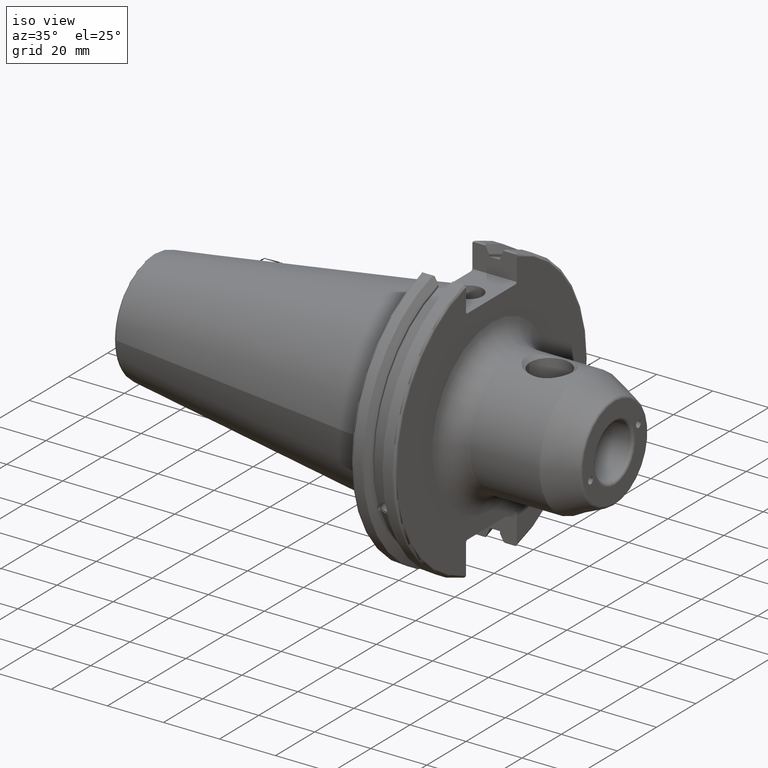
[diagram: clean part render]
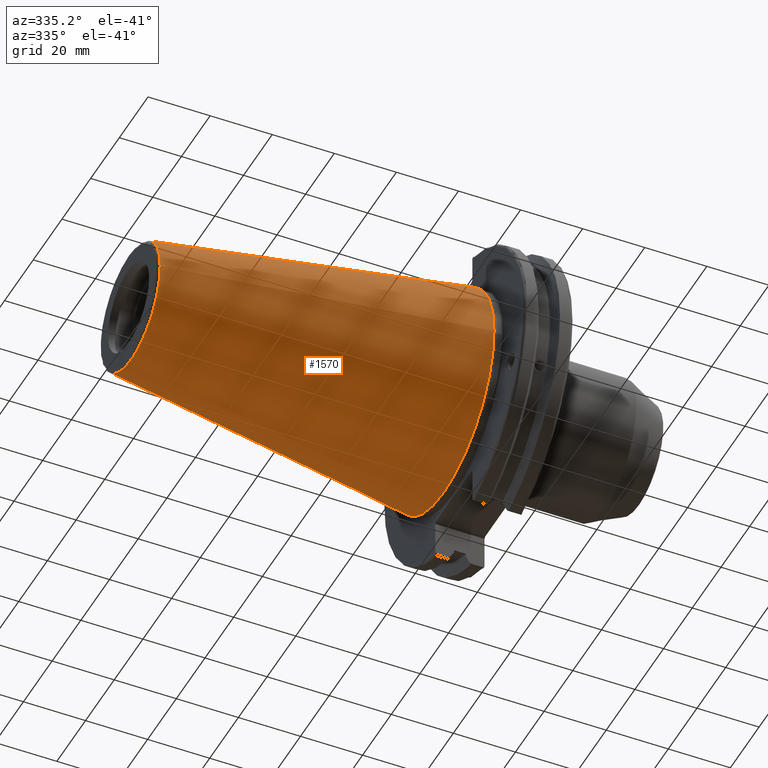
[diagram: tour spotlight — one face highlighted and labeled with its STEP entity id]
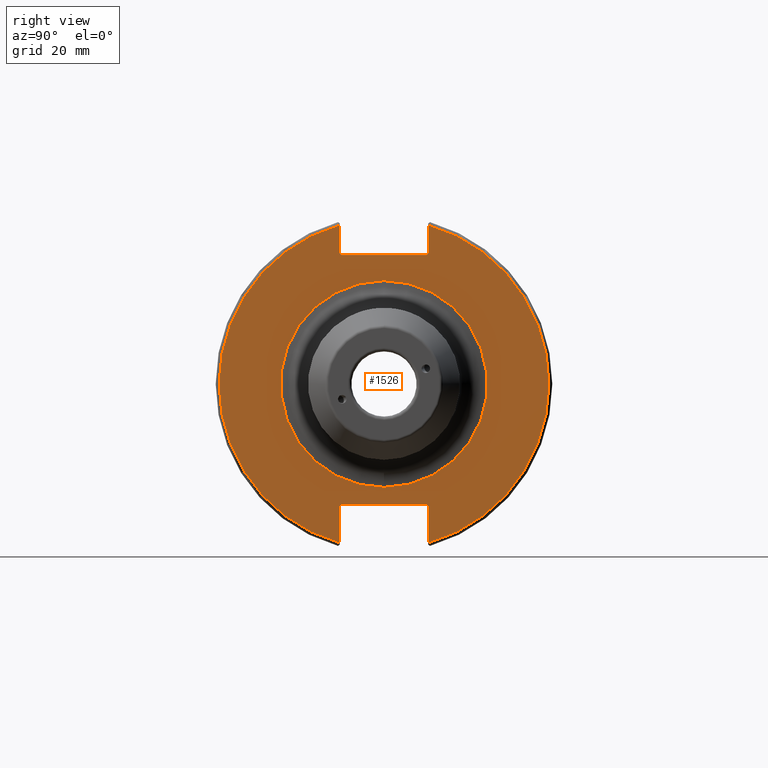
[diagram: tour spotlight — one face highlighted and labeled with its STEP entity id]
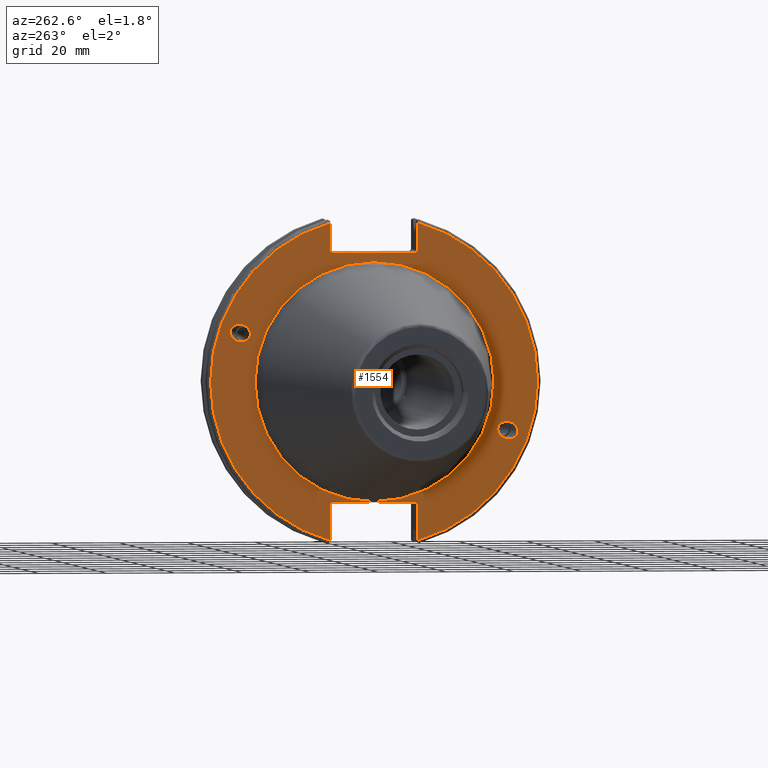
[diagram: tour spotlight — one face highlighted and labeled with its STEP entity id]
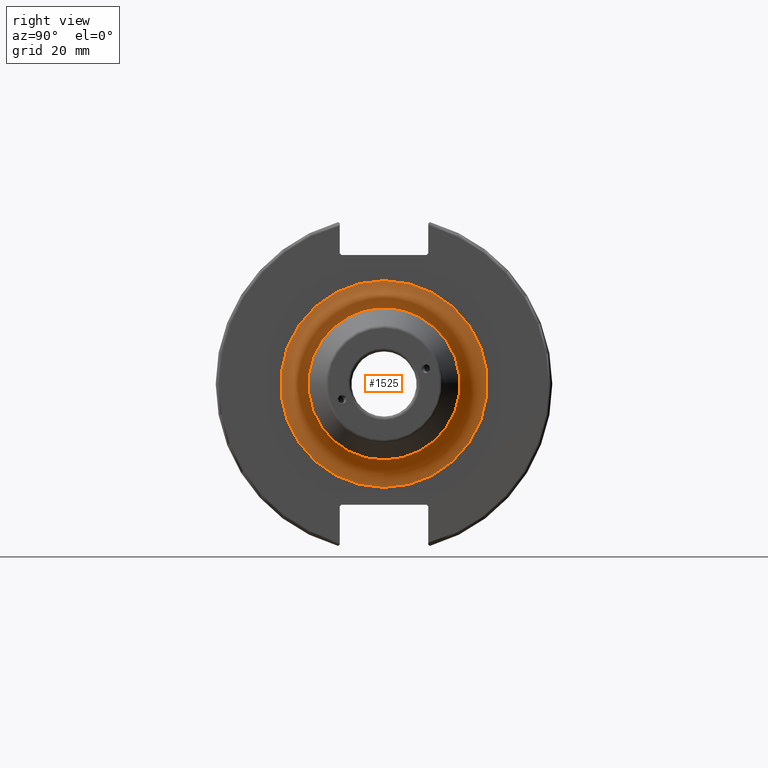
[diagram: tour spotlight — one face highlighted and labeled with its STEP entity id]
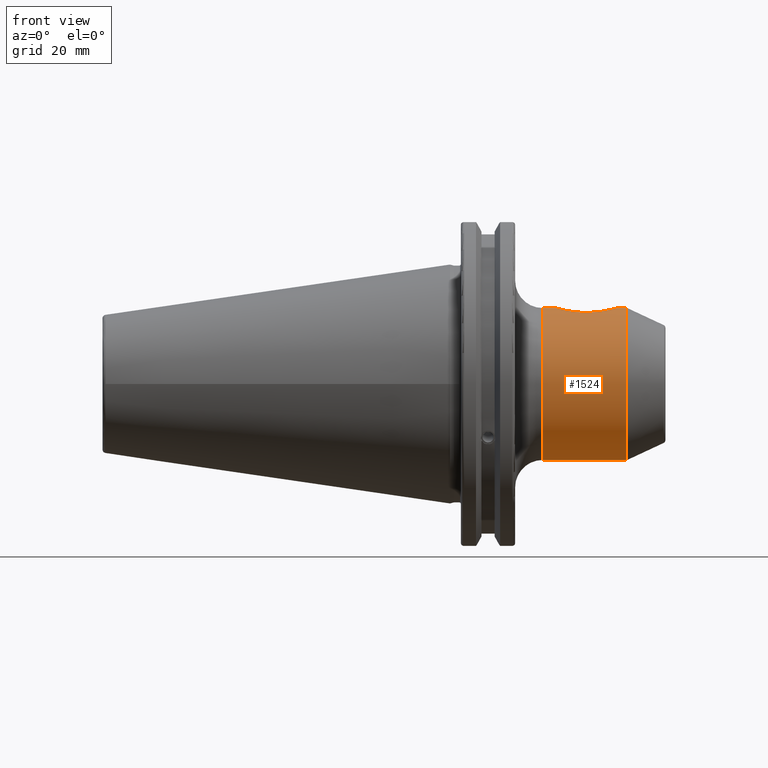
[diagram: tour spotlight — one face highlighted and labeled with its STEP entity id]
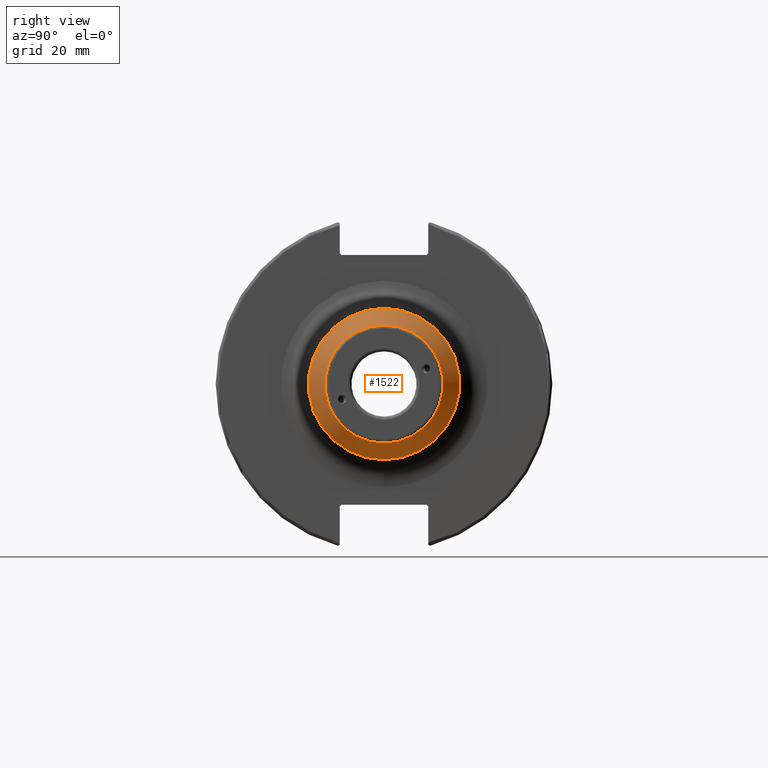
[diagram: tour spotlight — one face highlighted and labeled with its STEP entity id]
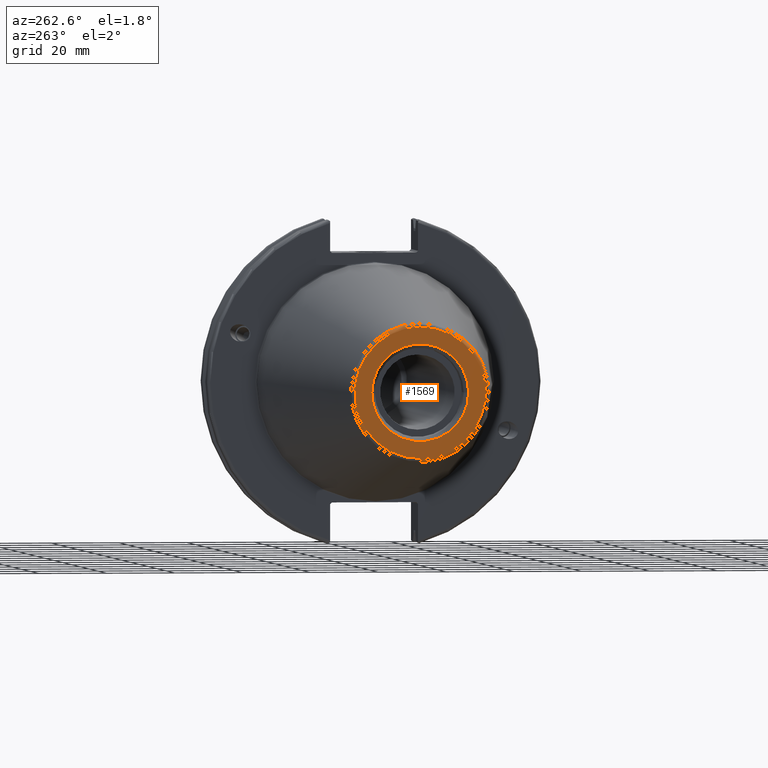
[diagram: tour spotlight — one face highlighted and labeled with its STEP entity id]
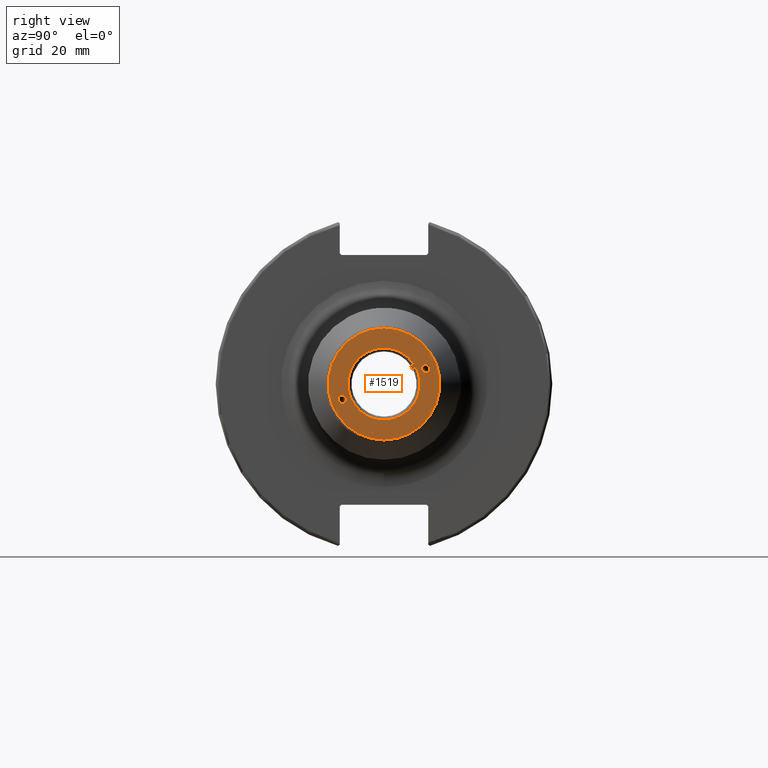
[diagram: tour spotlight — one face highlighted and labeled with its STEP entity id]
A machine part: a face-by-face anatomy tour. The part has 86 B-rep faces; the first image is the clean iso view, then the 8 largest visible faces are spotlighted one at a time (largest first), each with its STEP entity span.

Face 1 — auxiliary view, entity #1570. In plain terms, the highlighted conical surface has half-angle 8.297 deg.
Definition (entity closure, byte-faithful):
#48=CONICAL_SURFACE('',#1746,27.5166666666666,0.14481249823894);
#172=CIRCLE('',#1740,20.233121911427);
#173=CIRCLE('',#1741,20.233121911427);
#177=CIRCLE('',#1747,34.925);
#246=FACE_OUTER_BOUND('',#354,.T.);
#354=EDGE_LOOP('',(#1355,#1356,#1357,#1358,#1359));
#508=LINE('',#3269,#601);
#601=VECTOR('',#2117,27.5166666666666);
#769=VERTEX_POINT('',#3256);
#770=VERTEX_POINT('',#3257);
#773=VERTEX_POINT('',#3267);
#980=EDGE_CURVE('',#769,#770,#172,.T.);
#981=EDGE_CURVE('',#770,#769,#173,.T.);
#985=EDGE_CURVE('',#773,#773,#177,.T.);
#986=EDGE_CURVE('',#773,#770,#508,.T.);
#1355=ORIENTED_EDGE('',*,*,#985,.F.);
#1356=ORIENTED_EDGE('',*,*,#986,.T.);
#1357=ORIENTED_EDGE('',*,*,#980,.F.);
#1358=ORIENTED_EDGE('',*,*,#981,.F.);
#1359=ORIENTED_EDGE('',*,*,#986,.F.);
#1570=ADVANCED_FACE('',(#246),#48,.T.);
#1740=AXIS2_PLACEMENT_3D('',#3258,#2101,#2102);
#1741=AXIS2_PLACEMENT_3D('',#3259,#2103,#2104);
#1746=AXIS2_PLACEMENT_3D('',#3266,#2113,#2114);
#1747=AXIS2_PLACEMENT_3D('',#3268,#2115,#2116);
#2101=DIRECTION('center_axis',(-1.,0.,0.));
#2102=DIRECTION('ref_axis',(0.,-1.,3.06161699786838E-17));
#2103=DIRECTION('center_axis',(-1.,0.,0.));
#2104=DIRECTION('ref_axis',(0.,-1.,3.06161699786838E-17));
#2113=DIRECTION('center_axis',(1.,0.,0.));
#2114=DIRECTION('ref_axis',(0.,1.,0.));
#2115=DIRECTION('center_axis',(1.,0.,0.));
#2116=DIRECTION('ref_axis',(0.,0.,-1.));
#2117=DIRECTION('',(-0.989532981063281,0.144306893071729,1.76724974695192E-17));
#3256=CARTESIAN_POINT('',(-100.744306893072,-2.47784279855872E-15,20.233121911427));
#3257=CARTESIAN_POINT('',(-100.744306893072,-20.233121911427,-2.47784279855872E-15));
#3258=CARTESIAN_POINT('Origin',(-100.744306893072,0.,-3.09730349819841E-15));
#3259=CARTESIAN_POINT('Origin',(-100.744306893072,0.,-3.09730349819841E-15));
#3266=CARTESIAN_POINT('Origin',(-50.8,0.,0.));
#3267=CARTESIAN_POINT('',(-8.88178419700125E-15,-34.925,-4.27707894602213E-15));
#3268=CARTESIAN_POINT('Origin',(0.,0.,0.));
#3269=CARTESIAN_POINT('',(-50.8,-27.5166666666666,-3.3698197756538E-15));

Face 2 — right view, entity #1526. In plain terms, the highlighted planar face has unit normal (1, 0, 0).
Definition (entity closure, byte-faithful):
#59=FACE_BOUND('',#294,.T.);
#80=PLANE('',#1657);
#133=CIRCLE('',#1656,30.225);
#134=CIRCLE('',#1658,48.2125);
#135=CIRCLE('',#1659,48.2125);
#202=FACE_OUTER_BOUND('',#293,.T.);
#293=EDGE_LOOP('',(#1087,#1088,#1089,#1090,#1091,#1092,#1093,#1094,#1095,
#1096,#1097,#1098));
#294=EDGE_LOOP('',(#1099));
#440=LINE('',#2470,#533);
#441=LINE('',#2472,#534);
#442=LINE('',#2474,#535);
#443=LINE('',#2476,#536);
#444=LINE('',#2478,#537);
#445=LINE('',#2482,#538);
#446=LINE('',#2484,#539);
#447=LINE('',#2486,#540);
#448=LINE('',#2488,#541);
#449=LINE('',#2489,#542);
#533=VECTOR('',#1871,10.);
#534=VECTOR('',#1872,10.);
#535=VECTOR('',#1873,10.);
#536=VECTOR('',#1874,10.);
#537=VECTOR('',#1875,10.);
#538=VECTOR('',#1878,10.);
#539=VECTOR('',#1879,10.);
#540=VECTOR('',#1880,10.);
#541=VECTOR('',#1881,10.);
#542=VECTOR('',#1882,10.);
#648=VERTEX_POINT('',#2462);
#649=VERTEX_POINT('',#2466);
#650=VERTEX_POINT('',#2467);
#651=VERTEX_POINT('',#2469);
#652=VERTEX_POINT('',#2471);
#653=VERTEX_POINT('',#2473);
#654=VERTEX_POINT('',#2475);
#655=VERTEX_POINT('',#2477);
#656=VERTEX_POINT('',#2479);
#657=VERTEX_POINT('',#2481);
#658=VERTEX_POINT('',#2483);
#659=VERTEX_POINT('',#2485);
#660=VERTEX_POINT('',#2487);
#819=EDGE_CURVE('',#648,#648,#133,.T.);
#820=EDGE_CURVE('',#649,#650,#134,.T.);
#821=EDGE_CURVE('',#649,#651,#440,.T.);
#822=EDGE_CURVE('',#652,#651,#441,.T.);
#823=EDGE_CURVE('',#652,#653,#442,.T.);
#824=EDGE_CURVE('',#654,#653,#443,.T.);
#825=EDGE_CURVE('',#654,#655,#444,.T.);
#826=EDGE_CURVE('',#656,#655,#135,.T.);
#827=EDGE_CURVE('',#656,#657,#445,.T.);
#828=EDGE_CURVE('',#658,#657,#446,.T.);
#829=EDGE_CURVE('',#658,#659,#447,.T.);
#830=EDGE_CURVE('',#660,#659,#448,.T.);
#831=EDGE_CURVE('',#660,#650,#449,.T.);
#1087=ORIENTED_EDGE('',*,*,#820,.F.);
#1088=ORIENTED_EDGE('',*,*,#821,.T.);
#1089=ORIENTED_EDGE('',*,*,#822,.F.);
#1090=ORIENTED_EDGE('',*,*,#823,.T.);
#1091=ORIENTED_EDGE('',*,*,#824,.F.);
#1092=ORIENTED_EDGE('',*,*,#825,.T.);
#1093=ORIENTED_EDGE('',*,*,#826,.F.);
#1094=ORIENTED_EDGE('',*,*,#827,.T.);
#1095=ORIENTED_EDGE('',*,*,#828,.F.);
#1096=ORIENTED_EDGE('',*,*,#829,.T.);
#1097=ORIENTED_EDGE('',*,*,#830,.F.);
#1098=ORIENTED_EDGE('',*,*,#831,.T.);
#1099=ORIENTED_EDGE('',*,*,#819,.F.);
#1526=ADVANCED_FACE('',(#202,#59),#80,.T.);
#1656=AXIS2_PLACEMENT_3D('',#2464,#1865,#1866);
#1657=AXIS2_PLACEMENT_3D('',#2465,#1867,#1868);
#1658=AXIS2_PLACEMENT_3D('',#2468,#1869,#1870);
#1659=AXIS2_PLACEMENT_3D('',#2480,#1876,#1877);
#1865=DIRECTION('center_axis',(1.,0.,0.));
#1866=DIRECTION('ref_axis',(0.,1.22464679914735E-16,-1.));
#1867=DIRECTION('center_axis',(1.,0.,0.));
#1868=DIRECTION('ref_axis',(0.,0.,-1.));
#1869=DIRECTION('center_axis',(-1.,0.,0.));
#1870=DIRECTION('ref_axis',(0.,1.,-6.12323399573677E-17));
#1871=DIRECTION('',(0.,0.,-1.));
#1872=DIRECTION('',(0.,0.707106781186549,0.707106781186546));
#1873=DIRECTION('',(0.,-1.,0.));
#1874=DIRECTION('',(0.,0.707106781186549,-0.707106781186546));
#1875=DIRECTION('',(0.,0.,1.));
#1876=DIRECTION('center_axis',(-1.,0.,0.));
#1877=DIRECTION('ref_axis',(0.,-1.,1.60812264967664E-16));
#1878=DIRECTION('',(0.,0.,1.));
#1879=DIRECTION('',(0.,-0.707106781186549,-0.707106781186546));
#1880=DIRECTION('',(0.,1.,0.));
#1881=DIRECTION('',(0.,-0.707106781186549,0.707106781186546));
#1882=DIRECTION('',(0.,0.,-1.));
#2462=CARTESIAN_POINT('',(19.05,-3.70149495042287E-15,-30.225));
#2464=CARTESIAN_POINT('Origin',(19.05,0.,0.));
#2465=CARTESIAN_POINT('Origin',(19.05,0.,0.));
#2466=CARTESIAN_POINT('',(19.05,12.95,46.4407434937254));
#2467=CARTESIAN_POINT('',(19.05,12.95,-46.4407434937254));
#2468=CARTESIAN_POINT('Origin',(19.05,0.,0.));
#2469=CARTESIAN_POINT('',(19.05,12.95,38.219));
#2470=CARTESIAN_POINT('',(19.05,12.95,18.8595));
#2471=CARTESIAN_POINT('',(19.05,12.45,37.719));
#2472=CARTESIAN_POINT('',(19.05,0.0327499999999836,25.30175));
#2473=CARTESIAN_POINT('',(19.05,-12.45,37.719));
#2474=CARTESIAN_POINT('',(19.05,0.,37.719));
#2475=CARTESIAN_POINT('',(19.05,-12.95,38.219));
#2476=CARTESIAN_POINT('',(19.05,-0.0327499999999817,25.30175));
#2477=CARTESIAN_POINT('',(19.05,-12.95,46.4407434937254));
#2478=CARTESIAN_POINT('',(19.05,-12.95,18.8595));
#2479=CARTESIAN_POINT('',(19.05,-12.95,-46.4407434937254));
#2480=CARTESIAN_POINT('Origin',(19.05,0.,0.));
#2481=CARTESIAN_POINT('',(19.05,-12.95,-35.806));
#2482=CARTESIAN_POINT('',(19.05,-12.95,-17.653));
#2483=CARTESIAN_POINT('',(19.05,-12.45,-35.306));
#2484=CARTESIAN_POINT('',(19.05,-0.635999999999989,-23.492));
#2485=CARTESIAN_POINT('',(19.05,12.45,-35.306));
#2486=CARTESIAN_POINT('',(19.05,-3.33066907387547E-15,-35.306));
#2487=CARTESIAN_POINT('',(19.05,12.95,-35.806));
#2488=CARTESIAN_POINT('',(19.05,0.635999999999982,-23.492));
#2489=CARTESIAN_POINT('',(19.05,12.95,-17.653));

Face 3 — auxiliary view, entity #1554. In plain terms, the highlighted planar face has unit normal (-1, 0, 0).
Definition (entity closure, byte-faithful):
#72=FACE_BOUND('',#335,.T.);
#73=FACE_BOUND('',#336,.T.);
#74=FACE_BOUND('',#337,.T.);
#89=PLANE('',#1717);
#162=CIRCLE('',#1715,35.125);
#164=CIRCLE('',#1718,48.2125);
#165=CIRCLE('',#1719,48.2125);
#230=FACE_OUTER_BOUND('',#334,.T.);
#334=EDGE_LOOP('',(#1248,#1249,#1250,#1251,#1252,#1253,#1254,#1255,#1256,
#1257,#1258,#1259));
#335=EDGE_LOOP('',(#1260));
#336=EDGE_LOOP('',(#1261));
#337=EDGE_LOOP('',(#1262));
#478=LINE('',#3037,#571);
#479=LINE('',#3039,#572);
#480=LINE('',#3041,#573);
#481=LINE('',#3043,#574);
#482=LINE('',#3045,#575);
#483=LINE('',#3049,#576);
#484=LINE('',#3051,#577);
#485=LINE('',#3053,#578);
#486=LINE('',#3055,#579);
#487=LINE('',#3056,#580);
#571=VECTOR('',#2029,10.);
#572=VECTOR('',#2030,10.);
#573=VECTOR('',#2031,10.);
#574=VECTOR('',#2032,10.);
#575=VECTOR('',#2033,10.);
#576=VECTOR('',#2036,10.);
#577=VECTOR('',#2037,10.);
#578=VECTOR('',#2038,10.);
#579=VECTOR('',#2039,10.);
#580=VECTOR('',#2040,10.);
#620=ELLIPSE('',#1677,3.05193647190364,2.5);
#621=ELLIPSE('',#1711,3.05193647190364,2.5);
#686=VERTEX_POINT('',#2762);
#724=VERTEX_POINT('',#3021);
#727=VERTEX_POINT('',#3028);
#728=VERTEX_POINT('',#3033);
#729=VERTEX_POINT('',#3034);
#730=VERTEX_POINT('',#3036);
#731=VERTEX_POINT('',#3038);
#732=VERTEX_POINT('',#3040);
#733=VERTEX_POINT('',#3042);
#734=VERTEX_POINT('',#3044);
#735=VERTEX_POINT('',#3046);
#736=VERTEX_POINT('',#3048);
#737=VERTEX_POINT('',#3050);
#738=VERTEX_POINT('',#3052);
#739=VERTEX_POINT('',#3054);
#864=EDGE_CURVE('',#686,#686,#620,.T.);
#915=EDGE_CURVE('',#724,#724,#621,.T.);
#918=EDGE_CURVE('',#727,#727,#162,.T.);
#920=EDGE_CURVE('',#728,#729,#164,.T.);
#921=EDGE_CURVE('',#728,#730,#478,.T.);
#922=EDGE_CURVE('',#731,#730,#479,.T.);
#923=EDGE_CURVE('',#731,#732,#480,.T.);
#924=EDGE_CURVE('',#733,#732,#481,.T.);
#925=EDGE_CURVE('',#733,#734,#482,.T.);
#926=EDGE_CURVE('',#735,#734,#165,.T.);
#927=EDGE_CURVE('',#735,#736,#483,.T.);
#928=EDGE_CURVE('',#737,#736,#484,.T.);
#929=EDGE_CURVE('',#737,#738,#485,.T.);
#930=EDGE_CURVE('',#739,#738,#486,.T.);
#931=EDGE_CURVE('',#739,#729,#487,.T.);
#1248=ORIENTED_EDGE('',*,*,#920,.F.);
#1249=ORIENTED_EDGE('',*,*,#921,.T.);
#1250=ORIENTED_EDGE('',*,*,#922,.F.);
#1251=ORIENTED_EDGE('',*,*,#923,.T.);
#1252=ORIENTED_EDGE('',*,*,#924,.F.);
#1253=ORIENTED_EDGE('',*,*,#925,.T.);
#1254=ORIENTED_EDGE('',*,*,#926,.F.);
#1255=ORIENTED_EDGE('',*,*,#927,.T.);
#1256=ORIENTED_EDGE('',*,*,#928,.F.);
#1257=ORIENTED_EDGE('',*,*,#929,.T.);
#1258=ORIENTED_EDGE('',*,*,#930,.F.);
#1259=ORIENTED_EDGE('',*,*,#931,.T.);
#1260=ORIENTED_EDGE('',*,*,#864,.T.);
#1261=ORIENTED_EDGE('',*,*,#915,.T.);
#1262=ORIENTED_EDGE('',*,*,#918,.F.);
#1554=ADVANCED_FACE('',(#230,#72,#73,#74),#89,.T.);
#1677=AXIS2_PLACEMENT_3D('',#2764,#1929,#1930);
#1711=AXIS2_PLACEMENT_3D('',#3023,#2013,#2014);
#1715=AXIS2_PLACEMENT_3D('',#3030,#2021,#2022);
#1717=AXIS2_PLACEMENT_3D('',#3032,#2025,#2026);
#1718=AXIS2_PLACEMENT_3D('',#3035,#2027,#2028);
#1719=AXIS2_PLACEMENT_3D('',#3047,#2034,#2035);
#1929=DIRECTION('center_axis',(1.,0.,0.));
#1930=DIRECTION('ref_axis',(0.,-0.939692620785908,-0.342020143325668));
#2013=DIRECTION('center_axis',(1.,0.,0.));
#2014=DIRECTION('ref_axis',(0.,0.939692620785908,0.342020143325669));
#2021=DIRECTION('center_axis',(-1.,0.,0.));
#2022=DIRECTION('ref_axis',(0.,-1.,1.83697019872103E-16));
#2025=DIRECTION('center_axis',(-1.,0.,0.));
#2026=DIRECTION('ref_axis',(0.,0.,1.));
#2027=DIRECTION('center_axis',(1.,0.,0.));
#2028=DIRECTION('ref_axis',(0.,-1.,1.60812264967664E-16));
#2029=DIRECTION('',(0.,0.,-1.));
#2030=DIRECTION('',(0.,-0.707106781186549,0.707106781186546));
#2031=DIRECTION('',(0.,1.,0.));
#2032=DIRECTION('',(0.,-0.707106781186549,-0.707106781186546));
#2033=DIRECTION('',(0.,0.,1.));
#2034=DIRECTION('center_axis',(1.,0.,0.));
#2035=DIRECTION('ref_axis',(0.,1.,-6.12323399573677E-17));
#2036=DIRECTION('',(0.,0.,1.));
#2037=DIRECTION('',(0.,0.707106781186549,-0.707106781186546));
#2038=DIRECTION('',(0.,-1.,0.));
#2039=DIRECTION('',(0.,0.707106781186549,0.707106781186546));
#2040=DIRECTION('',(0.,0.,-1.));
#2762=CARTESIAN_POINT('',(3.175,-36.5992078912529,-13.3210222701368));
#2764=CARTESIAN_POINT('Origin',(3.175,-39.4670900730082,-14.3648460196781));
#3021=CARTESIAN_POINT('',(3.175,36.5992078912529,13.3210222701368));
#3023=CARTESIAN_POINT('Origin',(3.175,39.4670900730082,14.3648460196781));
#3028=CARTESIAN_POINT('',(3.175,-4.30157188200508E-15,35.125));
#3030=CARTESIAN_POINT('Origin',(3.175,0.,0.));
#3032=CARTESIAN_POINT('Origin',(3.175,49.2125,0.));
#3033=CARTESIAN_POINT('',(3.175,-12.95,46.4407434937254));
#3034=CARTESIAN_POINT('',(3.175,-12.95,-46.4407434937254));
#3035=CARTESIAN_POINT('Origin',(3.175,0.,0.));
#3036=CARTESIAN_POINT('',(3.175,-12.95,38.219));
#3037=CARTESIAN_POINT('',(3.175,-12.95,18.8595));
#3038=CARTESIAN_POINT('',(3.175,-12.45,37.719));
#3039=CARTESIAN_POINT('',(3.175,12.2703750000001,12.998625));
#3040=CARTESIAN_POINT('',(3.175,12.45,37.719));
#3041=CARTESIAN_POINT('',(3.175,24.60625,37.719));
#3042=CARTESIAN_POINT('',(3.175,12.95,38.219));
#3043=CARTESIAN_POINT('',(3.175,12.335875,37.604875));
#3044=CARTESIAN_POINT('',(3.175,12.95,46.4407434937254));
#3045=CARTESIAN_POINT('',(3.175,12.95,18.8595));
#3046=CARTESIAN_POINT('',(3.175,12.95,-46.4407434937254));
#3047=CARTESIAN_POINT('Origin',(3.175,0.,0.));
#3048=CARTESIAN_POINT('',(3.175,12.95,-35.806));
#3049=CARTESIAN_POINT('',(3.175,12.95,-17.653));
#3050=CARTESIAN_POINT('',(3.175,12.45,-35.306));
#3051=CARTESIAN_POINT('',(3.175,12.939125,-35.795125));
#3052=CARTESIAN_POINT('',(3.175,-12.45,-35.306));
#3053=CARTESIAN_POINT('',(3.175,24.60625,-35.306));
#3054=CARTESIAN_POINT('',(3.175,-12.95,-35.806));
#3055=CARTESIAN_POINT('',(3.175,11.6671250000001,-11.188875));
#3056=CARTESIAN_POINT('',(3.175,-12.95,-17.653));

Face 4 — right view, entity #1525. In plain terms, the highlighted toroidal blend (fillet) surface has major radius 30.225 mm and minor (blend) radius 8 mm.
Definition (entity closure, byte-faithful):
#34=TOROIDAL_SURFACE('',#1654,30.225,8.);
#131=CIRCLE('',#1653,22.225);
#132=CIRCLE('',#1655,8.);
#133=CIRCLE('',#1656,30.225);
#201=FACE_OUTER_BOUND('',#292,.T.);
#292=EDGE_LOOP('',(#1083,#1084,#1085,#1086));
#647=VERTEX_POINT('',#2458);
#648=VERTEX_POINT('',#2462);
#817=EDGE_CURVE('',#647,#647,#131,.T.);
#818=EDGE_CURVE('',#647,#648,#132,.T.);
#819=EDGE_CURVE('',#648,#648,#133,.T.);
#1083=ORIENTED_EDGE('',*,*,#817,.T.);
#1084=ORIENTED_EDGE('',*,*,#818,.T.);
#1085=ORIENTED_EDGE('',*,*,#819,.T.);
#1086=ORIENTED_EDGE('',*,*,#818,.F.);
#1525=ADVANCED_FACE('',(#201),#34,.F.);
#1653=AXIS2_PLACEMENT_3D('',#2460,#1859,#1860);
#1654=AXIS2_PLACEMENT_3D('',#2461,#1861,#1862);
#1655=AXIS2_PLACEMENT_3D('',#2463,#1863,#1864);
#1656=AXIS2_PLACEMENT_3D('',#2464,#1865,#1866);
#1859=DIRECTION('center_axis',(-1.,0.,0.));
#1860=DIRECTION('ref_axis',(0.,1.22464679914735E-16,-1.));
#1861=DIRECTION('center_axis',(-1.,0.,0.));
#1862=DIRECTION('ref_axis',(0.,0.,1.));
#1863=DIRECTION('center_axis',(0.,-1.,1.22464679914735E-16));
#1864=DIRECTION('ref_axis',(0.,-1.22464679914735E-16,-1.));
#1865=DIRECTION('center_axis',(1.,0.,0.));
#1866=DIRECTION('ref_axis',(0.,1.22464679914735E-16,-1.));
#2458=CARTESIAN_POINT('',(27.05,2.72177751110499E-15,-22.225));
#2460=CARTESIAN_POINT('Origin',(27.05,0.,0.));
#2461=CARTESIAN_POINT('Origin',(27.05,0.,0.));
#2462=CARTESIAN_POINT('',(19.05,-3.70149495042287E-15,-30.225));
#2463=CARTESIAN_POINT('Origin',(27.05,-3.70149495042287E-15,-30.225));
#2464=CARTESIAN_POINT('Origin',(19.05,0.,0.));

Face 5 — front view, entity #1524. In plain terms, the highlighted cylindrical surface (bore or boss wall) has radius 22.225 mm, axis along (1, 0, 0).
Definition (entity closure, byte-faithful):
#58=FACE_BOUND('',#291,.T.);
#129=CIRCLE('',#1650,22.225);
#130=CIRCLE('',#1651,22.225);
#131=CIRCLE('',#1653,22.225);
#200=FACE_OUTER_BOUND('',#290,.T.);
#290=EDGE_LOOP('',(#1076,#1077,#1078,#1079,#1080));
#291=EDGE_LOOP('',(#1081,#1082));
#392=B_SPLINE_CURVE_WITH_KNOTS('',3,(#2385,#2386,#2387,#2388,#2389,#2390,
#2391,#2392,#2393,#2394,#2395,#2396,#2397,#2398,#2399,#2400,#2401,#2402,
#2403,#2404,#2405,#2406,#2407,#2408,#2409,#2410),.UNSPECIFIED.,.F.,.F.,
(4,2,2,2,2,2,2,2,2,2,2,2,4),(0.,0.299114190086227,0.598228380172454,0.909542787730122,
1.22085719528779,1.53217160284546,1.84348601040312,2.14260020048935,2.44171439057558,
2.74082858066181,3.03994277074803,3.3512571783057,3.66257158586337),
 .UNSPECIFIED.);
#393=B_SPLINE_CURVE_WITH_KNOTS('',3,(#2411,#2412,#2413,#2414,#2415,#2416,
#2417,#2418,#2419,#2420),.UNSPECIFIED.,.F.,.F.,(4,2,2,2,4),(3.66257158586337,
3.97388599342104,4.2852004009787,4.58431459106493,4.88342878115116),
 .UNSPECIFIED.);
#439=LINE('',#2459,#532);
#532=VECTOR('',#1858,22.225);
#633=VERTEX_POINT('',#2382);
#634=VERTEX_POINT('',#2384);
#645=VERTEX_POINT('',#2452);
#646=VERTEX_POINT('',#2454);
#647=VERTEX_POINT('',#2458);
#796=EDGE_CURVE('',#634,#633,#392,.T.);
#797=EDGE_CURVE('',#633,#634,#393,.T.);
#814=EDGE_CURVE('',#645,#646,#129,.T.);
#815=EDGE_CURVE('',#646,#645,#130,.T.);
#816=EDGE_CURVE('',#646,#647,#439,.T.);
#817=EDGE_CURVE('',#647,#647,#131,.T.);
#1076=ORIENTED_EDGE('',*,*,#814,.F.);
#1077=ORIENTED_EDGE('',*,*,#815,.F.);
#1078=ORIENTED_EDGE('',*,*,#816,.T.);
#1079=ORIENTED_EDGE('',*,*,#817,.F.);
#1080=ORIENTED_EDGE('',*,*,#816,.F.);
#1081=ORIENTED_EDGE('',*,*,#796,.T.);
#1082=ORIENTED_EDGE('',*,*,#797,.T.);
#1490=CYLINDRICAL_SURFACE('',#1652,22.225);
#1524=ADVANCED_FACE('',(#200,#58),#1490,.T.);
#1650=AXIS2_PLACEMENT_3D('',#2455,#1852,#1853);
#1651=AXIS2_PLACEMENT_3D('',#2456,#1854,#1855);
#1652=AXIS2_PLACEMENT_3D('',#2457,#1856,#1857);
#1653=AXIS2_PLACEMENT_3D('',#2460,#1859,#1860);
#1852=DIRECTION('center_axis',(1.,0.,0.));
#1853=DIRECTION('ref_axis',(0.,0.,-1.));
#1854=DIRECTION('center_axis',(1.,0.,0.));
#1855=DIRECTION('ref_axis',(0.,0.,-1.));
#1856=DIRECTION('center_axis',(1.,0.,0.));
#1857=DIRECTION('ref_axis',(0.,0.,1.));
#1858=DIRECTION('',(-1.,0.,0.));
#1859=DIRECTION('center_axis',(-1.,0.,0.));
#1860=DIRECTION('ref_axis',(0.,1.22464679914735E-16,-1.));
#2382=CARTESIAN_POINT('',(31.235,-1.06115645146118E-15,22.225));
#2384=CARTESIAN_POINT('',(39.9,7.39769066174037,20.9576906617404));
#2385=CARTESIAN_POINT('Ctrl Pts',(39.9,7.39769066174037,20.9576906617404));
#2386=CARTESIAN_POINT('Ctrl Pts',(40.8970473002874,7.39769066174037,20.9576906617404));
#2387=CARTESIAN_POINT('Ctrl Pts',(41.97040419519,7.23997539621316,21.0155908137632));
#2388=CARTESIAN_POINT('Ctrl Pts',(43.9901277791255,6.57687976234593,21.2324507210536));
#2389=CARTESIAN_POINT('Ctrl Pts',(44.9368409417788,6.07165204340851,21.3886413492376));
#2390=CARTESIAN_POINT('Ctrl Pts',(46.5252387137002,4.83902538690169,21.701499797273));
#2391=CARTESIAN_POINT('Ctrl Pts',(47.269867902718,4.00945962630998,21.8813757060351));
#2392=CARTESIAN_POINT('Ctrl Pts',(48.2907276742924,2.10964789040204,22.1454232146106));
#2393=CARTESIAN_POINT('Ctrl Pts',(48.565,1.03771469185889,22.225));
#2394=CARTESIAN_POINT('Ctrl Pts',(48.565,-1.03771469185889,22.225));
#2395=CARTESIAN_POINT('Ctrl Pts',(48.2907276742924,-2.10964789040204,22.1454232146106));
#2396=CARTESIAN_POINT('Ctrl Pts',(47.269867902718,-4.00945962630998,21.8813757060351));
#2397=CARTESIAN_POINT('Ctrl Pts',(46.5252387137002,-4.83902538690169,21.701499797273));
#2398=CARTESIAN_POINT('Ctrl Pts',(44.9368409417788,-6.07165204340851,21.3886413492376));
#2399=CARTESIAN_POINT('Ctrl Pts',(43.9901277791255,-6.57687976234593,21.2324507210536));
#2400=CARTESIAN_POINT('Ctrl Pts',(41.97040419519,-7.23997539621316,21.0155908137632));
#2401=CARTESIAN_POINT('Ctrl Pts',(40.8970473002874,-7.39769066174037,20.9576906617404));
#2402=CARTESIAN_POINT('Ctrl Pts',(38.9029526997126,-7.39769066174037,20.9576906617404));
#2403=CARTESIAN_POINT('Ctrl Pts',(37.82959580481,-7.23997539621317,21.0155908137632));
#2404=CARTESIAN_POINT('Ctrl Pts',(35.8098722208746,-6.57687976234594,21.2324507210536));
#2405=CARTESIAN_POINT('Ctrl Pts',(34.8631590582212,-6.07165204340851,21.3886413492376));
#2406=CARTESIAN_POINT('Ctrl Pts',(33.2747612862998,-4.83902538690169,21.701499797273));
#2407=CARTESIAN_POINT('Ctrl Pts',(32.530132097282,-4.00945962630999,21.8813757060351));
#2408=CARTESIAN_POINT('Ctrl Pts',(31.5092723257076,-2.10964789040205,22.1454232146106));
#2409=CARTESIAN_POINT('Ctrl Pts',(31.235,-1.03771469185889,22.225));
#2410=CARTESIAN_POINT('Ctrl Pts',(31.235,-5.55111512312578E-16,22.225));
#2411=CARTESIAN_POINT('Ctrl Pts',(31.235,-5.55111512312578E-16,22.225));
#2412=CARTESIAN_POINT('Ctrl Pts',(31.235,1.03771469185889,22.225));
#2413=CARTESIAN_POINT('Ctrl Pts',(31.5092723257076,2.10964789040204,22.1454232146106));
#2414=CARTESIAN_POINT('Ctrl Pts',(32.530132097282,4.00945962630998,21.8813757060351));
#2415=CARTESIAN_POINT('Ctrl Pts',(33.2747612862998,4.83902538690168,21.701499797273));
#2416=CARTESIAN_POINT('Ctrl Pts',(34.8631590582212,6.07165204340851,21.3886413492376));
#2417=CARTESIAN_POINT('Ctrl Pts',(35.8098722208746,6.57687976234593,21.2324507210536));
#2418=CARTESIAN_POINT('Ctrl Pts',(37.82959580481,7.23997539621317,21.0155908137632));
#2419=CARTESIAN_POINT('Ctrl Pts',(38.9029526997126,7.39769066174037,20.9576906617404));
#2420=CARTESIAN_POINT('Ctrl Pts',(39.9,7.39769066174037,20.9576906617404));
#2452=CARTESIAN_POINT('',(51.5732566776946,-2.72177751110499E-15,22.225));
#2454=CARTESIAN_POINT('',(51.5732566776946,2.72177751110499E-15,-22.225));
#2455=CARTESIAN_POINT('Origin',(51.5732566776946,0.,0.));
#2456=CARTESIAN_POINT('Origin',(51.5732566776946,0.,0.));
#2457=CARTESIAN_POINT('Origin',(35.4224756701688,0.,0.));
#2458=CARTESIAN_POINT('',(27.05,2.72177751110499E-15,-22.225));
#2459=CARTESIAN_POINT('',(35.4224756701688,2.72177751110499E-15,-22.225));
#2460=CARTESIAN_POINT('Origin',(27.05,0.,0.));

Face 6 — right view, entity #1522. In plain terms, the highlighted conical surface has half-angle 25 deg.
Definition (entity closure, byte-faithful):
#42=CONICAL_SURFACE('',#1645,19.6125,0.436332312998582);
#124=CIRCLE('',#1643,17.2692375262292);
#125=CIRCLE('',#1644,17.2692375262292);
#126=CIRCLE('',#1646,22.1313077870366);
#127=CIRCLE('',#1647,22.1313077870366);
#198=FACE_OUTER_BOUND('',#288,.T.);
#288=EDGE_LOOP('',(#1064,#1065,#1066,#1067,#1068,#1069));
#438=LINE('',#2447,#531);
#531=VECTOR('',#1843,19.6125);
#641=VERTEX_POINT('',#2440);
#642=VERTEX_POINT('',#2442);
#643=VERTEX_POINT('',#2446);
#644=VERTEX_POINT('',#2448);
#808=EDGE_CURVE('',#641,#642,#124,.T.);
#809=EDGE_CURVE('',#642,#641,#125,.T.);
#810=EDGE_CURVE('',#642,#643,#438,.T.);
#811=EDGE_CURVE('',#644,#643,#126,.T.);
#812=EDGE_CURVE('',#643,#644,#127,.T.);
#1064=ORIENTED_EDGE('',*,*,#808,.F.);
#1065=ORIENTED_EDGE('',*,*,#809,.F.);
#1066=ORIENTED_EDGE('',*,*,#810,.T.);
#1067=ORIENTED_EDGE('',*,*,#811,.F.);
#1068=ORIENTED_EDGE('',*,*,#812,.F.);
#1069=ORIENTED_EDGE('',*,*,#810,.F.);
#1522=ADVANCED_FACE('',(#198),#42,.T.);
#1643=AXIS2_PLACEMENT_3D('',#2443,#1837,#1838);
#1644=AXIS2_PLACEMENT_3D('',#2444,#1839,#1840);
#1645=AXIS2_PLACEMENT_3D('',#2445,#1841,#1842);
#1646=AXIS2_PLACEMENT_3D('',#2449,#1844,#1845);
#1647=AXIS2_PLACEMENT_3D('',#2450,#1846,#1847);
#1837=DIRECTION('center_axis',(1.,0.,0.));
#1838=DIRECTION('ref_axis',(0.,6.12323399573677E-17,-1.));
#1839=DIRECTION('center_axis',(1.,0.,0.));
#1840=DIRECTION('ref_axis',(0.,6.12323399573677E-17,-1.));
#1841=DIRECTION('center_axis',(-1.,0.,0.));
#1842=DIRECTION('ref_axis',(0.,0.,1.));
#1843=DIRECTION('',(-0.90630778703665,5.17558101501966E-17,-0.422618261740699));
#1844=DIRECTION('center_axis',(-1.,0.,0.));
#1845=DIRECTION('ref_axis',(0.,6.12323399573677E-17,-1.));
#1846=DIRECTION('center_axis',(-1.,0.,0.));
#1847=DIRECTION('ref_axis',(0.,6.12323399573677E-17,-1.));
#2440=CARTESIAN_POINT('',(62.4226182617407,-2.11487164602119E-15,17.2692375262292));
#2442=CARTESIAN_POINT('',(62.4226182617407,2.11487164602119E-15,-17.2692375262292));
#2443=CARTESIAN_POINT('Origin',(62.4226182617407,1.05743582301059E-15,0.));
#2444=CARTESIAN_POINT('Origin',(62.4226182617407,1.05743582301059E-15,0.));
#2445=CARTESIAN_POINT('Origin',(57.3974756701688,0.,0.));
#2446=CARTESIAN_POINT('',(51.9958749394353,2.71030352423393E-15,-22.1313077870366));
#2447=CARTESIAN_POINT('',(57.3974756701688,2.40183853482775E-15,-19.6125));
#2448=CARTESIAN_POINT('',(51.9958749394353,2.71030352423393E-15,22.1313077870366));
#2449=CARTESIAN_POINT('Origin',(51.9958749394353,1.35515176211697E-15,0.));
#2450=CARTESIAN_POINT('Origin',(51.9958749394353,1.35515176211697E-15,0.));

Face 7 — auxiliary view, entity #1569. In plain terms, the highlighted planar face has unit normal (-1, 0, 0).
Definition (entity closure, byte-faithful):
#75=FACE_BOUND('',#353,.T.);
#97=PLANE('',#1744);
#175=CIRCLE('',#1743,19.2435889303637);
#176=CIRCLE('',#1745,14.2875);
#245=FACE_OUTER_BOUND('',#352,.T.);
#352=EDGE_LOOP('',(#1353));
#353=EDGE_LOOP('',(#1354));
#771=VERTEX_POINT('',#3260);
#772=VERTEX_POINT('',#3264);
#983=EDGE_CURVE('',#771,#771,#175,.T.);
#984=EDGE_CURVE('',#772,#772,#176,.T.);
#1353=ORIENTED_EDGE('',*,*,#983,.F.);
#1354=ORIENTED_EDGE('',*,*,#984,.T.);
#1569=ADVANCED_FACE('',(#245,#75),#97,.T.);
#1743=AXIS2_PLACEMENT_3D('',#3262,#2107,#2108);
#1744=AXIS2_PLACEMENT_3D('',#3263,#2109,#2110);
#1745=AXIS2_PLACEMENT_3D('',#3265,#2111,#2112);
#2107=DIRECTION('center_axis',(1.,0.,0.));
#2108=DIRECTION('ref_axis',(0.,-1.,1.83697019872103E-16));
#2109=DIRECTION('center_axis',(-1.,0.,0.));
#2110=DIRECTION('ref_axis',(0.,0.,1.));
#2111=DIRECTION('center_axis',(1.,0.,0.));
#2112=DIRECTION('ref_axis',(0.,0.,-1.));
#3260=CARTESIAN_POINT('',(-101.6,-2.35665995876774E-15,19.2435889303637));
#3262=CARTESIAN_POINT('Origin',(-101.6,0.,0.));
#3263=CARTESIAN_POINT('Origin',(-101.6,20.1083333333333,0.));
#3264=CARTESIAN_POINT('',(-101.6,-14.2875,-1.74971411428178E-15));
#3265=CARTESIAN_POINT('Origin',(-101.6,0.,0.));

Face 8 — right view, entity #1519. In plain terms, the highlighted planar face has unit normal (1, 0, 0).
Definition (entity closure, byte-faithful):
#55=FACE_BOUND('',#283,.T.);
#56=FACE_BOUND('',#284,.T.);
#57=FACE_BOUND('',#285,.T.);
#79=PLANE('',#1636);
#116=CIRCLE('',#1632,10.525);
#120=CIRCLE('',#1637,16.3629297391925);
#195=FACE_OUTER_BOUND('',#282,.T.);
#282=EDGE_LOOP('',(#1044));
#283=EDGE_LOOP('',(#1045));
#284=EDGE_LOOP('',(#1046));
#285=EDGE_LOOP('',(#1047));
#618=ELLIPSE('',#1623,1.2325023136908,1.2295);
#619=ELLIPSE('',#1625,1.2325023136908,1.2295);
#622=VERTEX_POINT('',#2214);
#625=VERTEX_POINT('',#2266);
#635=VERTEX_POINT('',#2422);
#638=VERTEX_POINT('',#2430);
#781=EDGE_CURVE('',#622,#622,#618,.T.);
#785=EDGE_CURVE('',#625,#625,#619,.T.);
#798=EDGE_CURVE('',#635,#635,#116,.T.);
#802=EDGE_CURVE('',#638,#638,#120,.T.);
#1044=ORIENTED_EDGE('',*,*,#802,.F.);
#1045=ORIENTED_EDGE('',*,*,#781,.T.);
#1046=ORIENTED_EDGE('',*,*,#785,.T.);
#1047=ORIENTED_EDGE('',*,*,#798,.F.);
#1519=ADVANCED_FACE('',(#195,#55,#56,#57),#79,.T.);
#1623=AXIS2_PLACEMENT_3D('',#2215,#1791,#1792);
#1625=AXIS2_PLACEMENT_3D('',#2267,#1796,#1797);
#1632=AXIS2_PLACEMENT_3D('',#2423,#1813,#1814);
#1636=AXIS2_PLACEMENT_3D('',#2429,#1821,#1822);
#1637=AXIS2_PLACEMENT_3D('',#2431,#1823,#1824);
#1791=DIRECTION('center_axis',(-1.,0.,0.));
#1792=DIRECTION('ref_axis',(0.,0.939692620785903,0.342020143325683));
#1796=DIRECTION('center_axis',(-1.,0.,0.));
#1797=DIRECTION('ref_axis',(0.,-0.939692620785903,-0.342020143325683));
#1813=DIRECTION('center_axis',(1.,0.,0.));
#1814=DIRECTION('ref_axis',(0.,-1.22464679914735E-16,1.));
#1821=DIRECTION('center_axis',(1.,0.,0.));
#1822=DIRECTION('ref_axis',(0.,0.,-1.));
#1823=DIRECTION('center_axis',(-1.,0.,0.));
#1824=DIRECTION('ref_axis',(0.,0.,-1.));
#2214=CARTESIAN_POINT('',(63.,-13.448155557749,-4.44818991157584));
#2215=CARTESIAN_POINT('Origin',(63.,-12.2160040702168,-4.44626186323369));
#2266=CARTESIAN_POINT('',(63.,13.448155557749,4.44818991157584));
#2267=CARTESIAN_POINT('Origin',(63.,12.2160040702168,4.44626186323369));
#2422=CARTESIAN_POINT('',(63.,2.57788151220518E-15,-10.525));
#2423=CARTESIAN_POINT('Origin',(63.,0.,0.));
#2429=CARTESIAN_POINT('Origin',(63.,0.,0.));
#2430=CARTESIAN_POINT('',(63.,2.00388095297751E-15,16.3629297391925));
#2431=CARTESIAN_POINT('Origin',(63.,0.,0.));